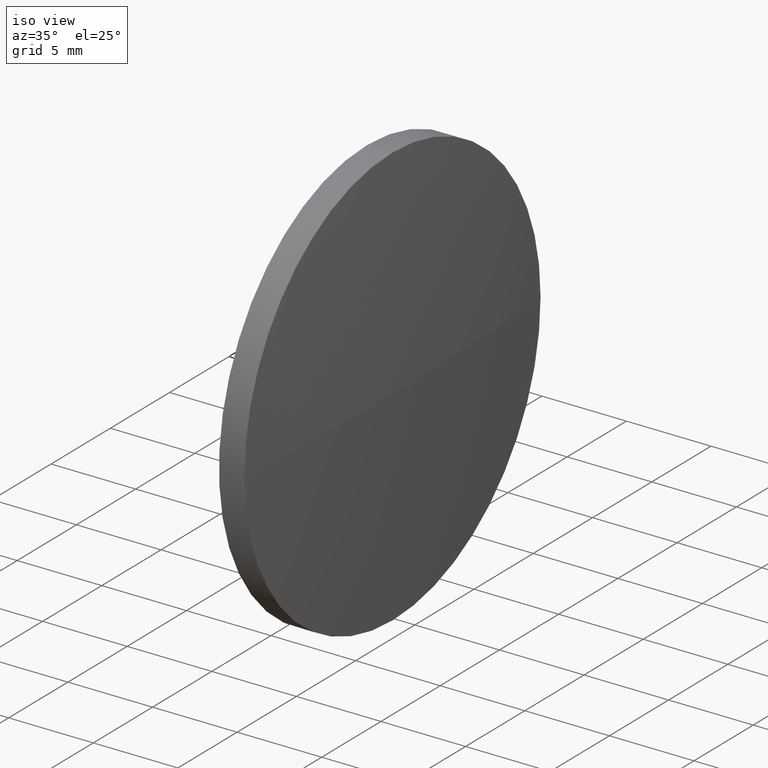
[diagram: clean part render]
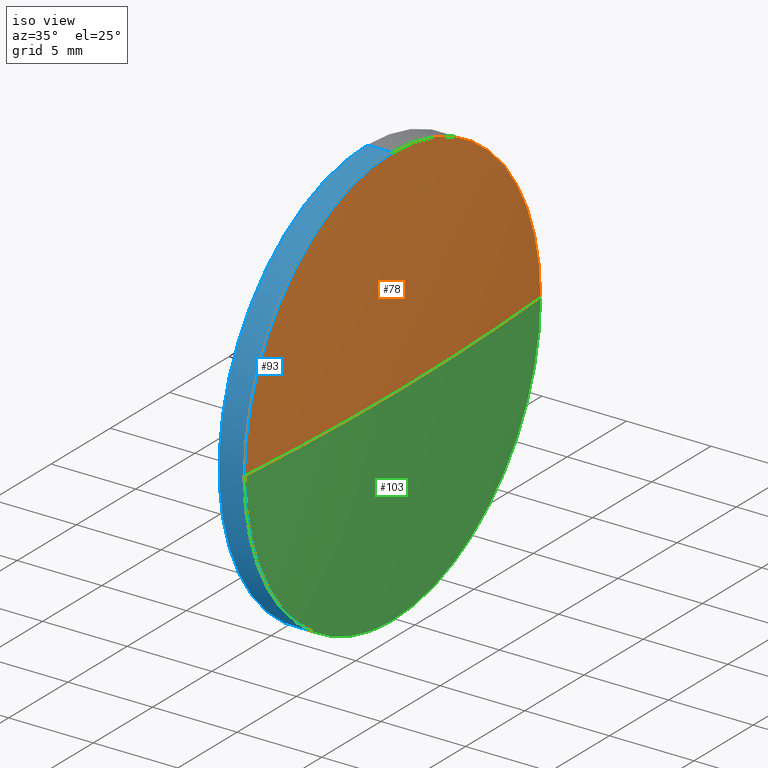
[diagram: same view with three faces highlighted in distinct colors, each labeled with its STEP entity id]
A machine part, iso view with three faces highlighted in distinct colors.
Their STEP definitions:

[orange] entity #78 — the highlighted spherical surface has radius 156.5 mm.
#6 = AXIS2_PLACEMENT_3D ( 'NONE', #16, #65, #53 ) ;
#10 = CARTESIAN_POINT ( 'NONE',  ( 494.4792713746937200, 143.8584804558214500, 12.50000000000001100 ) ) ;
#15 = EDGE_CURVE ( 'NONE', #47, #51, #87, .T. ) ;
#16 = CARTESIAN_POINT ( 'NONE',  ( 338.4792713746936700, 143.8584804558213600, 0.0000000000000000000 ) ) ;
#29 = EDGE_LOOP ( 'NONE', ( #71, #148, #120, #52 ) ) ;
#31 = CARTESIAN_POINT ( 'NONE',  ( 494.4792713746937200, 143.8584804558214500, 0.0000000000000000000 ) ) ;
#42 = DIRECTION ( 'NONE',  ( -1.000000000000000000, -0.0000000000000000000, -0.0000000000000000000 ) ) ;
#43 = DIRECTION ( 'NONE',  ( 0.0000000000000000000, 0.0000000000000000000, 1.000000000000000000 ) ) ;
#44 = VERTEX_POINT ( 'NONE', #50 ) ;
#45 = CIRCLE ( 'NONE', #94, 156.5000000000000300 ) ;
#47 = VERTEX_POINT ( 'NONE', #165 ) ;
#50 = CARTESIAN_POINT ( 'NONE',  ( 494.9792713746937200, 143.8584804558213600, 0.0000000000000000000 ) ) ;
#51 = VERTEX_POINT ( 'NONE', #10 ) ;
#52 = ORIENTED_EDGE ( 'NONE', *, *, #15, .F. ) ;
#53 = DIRECTION ( 'NONE',  ( 0.0000000000000000000, 1.000000000000000000, 0.0000000000000000000 ) ) ;
#55 = DIRECTION ( 'NONE',  ( -0.0000000000000000000, 0.0000000000000000000, 1.000000000000000000 ) ) ;
#59 = DIRECTION ( 'NONE',  ( -1.000000000000000000, -0.0000000000000000000, -0.0000000000000000000 ) ) ;
#65 = DIRECTION ( 'NONE',  ( -0.0000000000000000000, 0.0000000000000000000, -1.000000000000000000 ) ) ;
#66 = CARTESIAN_POINT ( 'NONE',  ( 494.4792713746937200, 156.3584804558213900, 0.0000000000000000000 ) ) ;
#67 = FACE_OUTER_BOUND ( 'NONE', #29, .T. ) ;
#71 = ORIENTED_EDGE ( 'NONE', *, *, #98, .F. ) ;
#78 = ADVANCED_FACE ( 'NONE', ( #67 ), #108, .T. ) ;
#79 = VERTEX_POINT ( 'NONE', #66 ) ;
#87 = CIRCLE ( 'NONE', #169, 12.50000000000001100 ) ;
#94 = AXIS2_PLACEMENT_3D ( 'NONE', #124, #55, #185 ) ;
#98 = EDGE_CURVE ( 'NONE', #44, #47, #144, .T. ) ;
#108 = SPHERICAL_SURFACE ( 'NONE', #6, 156.5000000000000300 ) ;
#116 = CARTESIAN_POINT ( 'NONE',  ( 494.4792713746937200, 143.8584804558214500, 0.0000000000000000000 ) ) ;
#118 = AXIS2_PLACEMENT_3D ( 'NONE', #159, #171, #170 ) ;
#120 = ORIENTED_EDGE ( 'NONE', *, *, #146, .F. ) ;
#124 = CARTESIAN_POINT ( 'NONE',  ( 338.4792713746936700, 143.8584804558213600, 0.0000000000000000000 ) ) ;
#126 = CIRCLE ( 'NONE', #129, 12.50000000000001100 ) ;
#129 = AXIS2_PLACEMENT_3D ( 'NONE', #31, #42, #43 ) ;
#132 = DIRECTION ( 'NONE',  ( 0.0000000000000000000, 0.0000000000000000000, 1.000000000000000000 ) ) ;
#139 = EDGE_CURVE ( 'NONE', #44, #79, #45, .T. ) ;
#144 = CIRCLE ( 'NONE', #118, 156.5000000000000000 ) ;
#146 = EDGE_CURVE ( 'NONE', #51, #79, #126, .T. ) ;
#148 = ORIENTED_EDGE ( 'NONE', *, *, #139, .T. ) ;
#159 = CARTESIAN_POINT ( 'NONE',  ( 338.4792713746936700, 143.8584804558213600, 0.0000000000000000000 ) ) ;
#165 = CARTESIAN_POINT ( 'NONE',  ( 494.4792713746937200, 131.3584804558213900, -1.530808498934188200E-015 ) ) ;
#169 = AXIS2_PLACEMENT_3D ( 'NONE', #116, #59, #132 ) ;
#170 = DIRECTION ( 'NONE',  ( 0.0000000000000000000, 1.000000000000000000, 1.224646799147353500E-016 ) ) ;
#171 = DIRECTION ( 'NONE',  ( 0.0000000000000000000, 1.224646799147353200E-016, -1.000000000000000000 ) ) ;
#185 = DIRECTION ( 'NONE',  ( 1.000000000000000000, 0.0000000000000000000, 0.0000000000000000000 ) ) ;

[blue] entity #93 — the highlighted cylindrical surface (partial cylindrical patch) has radius 12.5 mm, axis along (-1, -0, -0).
#4 = CYLINDRICAL_SURFACE ( 'NONE', #181, 12.50000000000001100 ) ;
#10 = CARTESIAN_POINT ( 'NONE',  ( 494.4792713746937200, 143.8584804558214500, 12.50000000000001100 ) ) ;
#11 = EDGE_CURVE ( 'NONE', #119, #47, #168, .T. ) ;
#12 = EDGE_LOOP ( 'NONE', ( #135, #25, #153, #83, #75 ) ) ;
#13 = CARTESIAN_POINT ( 'NONE',  ( 490.6136554719327600, 143.8584804558214500, -12.50000000000001100 ) ) ;
#15 = EDGE_CURVE ( 'NONE', #47, #51, #87, .T. ) ;
#17 = DIRECTION ( 'NONE',  ( 0.0000000000000000000, 0.0000000000000000000, 1.000000000000000000 ) ) ;
#18 = CARTESIAN_POINT ( 'NONE',  ( 494.4792713746937200, 143.8584804558214500, -12.50000000000001100 ) ) ;
#22 = AXIS2_PLACEMENT_3D ( 'NONE', #184, #81, #17 ) ;
#25 = ORIENTED_EDGE ( 'NONE', *, *, #11, .T. ) ;
#28 = CIRCLE ( 'NONE', #22, 12.50000000000001100 ) ;
#35 = LINE ( 'NONE', #110, #150 ) ;
#36 = FACE_OUTER_BOUND ( 'NONE', #12, .T. ) ;
#47 = VERTEX_POINT ( 'NONE', #165 ) ;
#51 = VERTEX_POINT ( 'NONE', #10 ) ;
#59 = DIRECTION ( 'NONE',  ( -1.000000000000000000, -0.0000000000000000000, -0.0000000000000000000 ) ) ;
#62 = CARTESIAN_POINT ( 'NONE',  ( 494.4792713746937200, 143.8584804558214500, 0.0000000000000000000 ) ) ;
#70 = VECTOR ( 'NONE', #172, 1000.000000000000000 ) ;
#75 = ORIENTED_EDGE ( 'NONE', *, *, #92, .F. ) ;
#81 = DIRECTION ( 'NONE',  ( -1.000000000000000000, -0.0000000000000000000, -0.0000000000000000000 ) ) ;
#83 = ORIENTED_EDGE ( 'NONE', *, *, #163, .T. ) ;
#87 = CIRCLE ( 'NONE', #169, 12.50000000000001100 ) ;
#92 = EDGE_CURVE ( 'NONE', #176, #149, #28, .T. ) ;
#93 = ADVANCED_FACE ( 'NONE', ( #36 ), #4, .T. ) ;
#106 = CARTESIAN_POINT ( 'NONE',  ( 492.9792713746937200, 143.8584804558214500, -12.50000000000001100 ) ) ;
#109 = CARTESIAN_POINT ( 'NONE',  ( 490.6136554719327600, 143.8584804558214500, 0.0000000000000000000 ) ) ;
#110 = CARTESIAN_POINT ( 'NONE',  ( 490.6136554719327600, 143.8584804558214500, 12.50000000000001100 ) ) ;
#111 = AXIS2_PLACEMENT_3D ( 'NONE', #62, #167, #180 ) ;
#114 = LINE ( 'NONE', #13, #70 ) ;
#116 = CARTESIAN_POINT ( 'NONE',  ( 494.4792713746937200, 143.8584804558214500, 0.0000000000000000000 ) ) ;
#119 = VERTEX_POINT ( 'NONE', #18 ) ;
#122 = DIRECTION ( 'NONE',  ( -1.000000000000000000, -0.0000000000000000000, -0.0000000000000000000 ) ) ;
#123 = EDGE_CURVE ( 'NONE', #119, #176, #114, .T. ) ;
#125 = DIRECTION ( 'NONE',  ( 0.0000000000000000000, 0.0000000000000000000, 1.000000000000000000 ) ) ;
#132 = DIRECTION ( 'NONE',  ( 0.0000000000000000000, 0.0000000000000000000, 1.000000000000000000 ) ) ;
#135 = ORIENTED_EDGE ( 'NONE', *, *, #123, .F. ) ;
#140 = DIRECTION ( 'NONE',  ( -1.000000000000000000, -0.0000000000000000000, -0.0000000000000000000 ) ) ;
#143 = CARTESIAN_POINT ( 'NONE',  ( 492.9792713746937200, 143.8584804558214500, 12.50000000000001100 ) ) ;
#149 = VERTEX_POINT ( 'NONE', #143 ) ;
#150 = VECTOR ( 'NONE', #140, 1000.000000000000000 ) ;
#153 = ORIENTED_EDGE ( 'NONE', *, *, #15, .T. ) ;
#163 = EDGE_CURVE ( 'NONE', #51, #149, #35, .T. ) ;
#165 = CARTESIAN_POINT ( 'NONE',  ( 494.4792713746937200, 131.3584804558213900, -1.530808498934188200E-015 ) ) ;
#167 = DIRECTION ( 'NONE',  ( -1.000000000000000000, -0.0000000000000000000, -0.0000000000000000000 ) ) ;
#168 = CIRCLE ( 'NONE', #111, 12.50000000000001100 ) ;
#169 = AXIS2_PLACEMENT_3D ( 'NONE', #116, #59, #132 ) ;
#172 = DIRECTION ( 'NONE',  ( -1.000000000000000000, -0.0000000000000000000, -0.0000000000000000000 ) ) ;
#176 = VERTEX_POINT ( 'NONE', #106 ) ;
#180 = DIRECTION ( 'NONE',  ( 0.0000000000000000000, 0.0000000000000000000, 1.000000000000000000 ) ) ;
#181 = AXIS2_PLACEMENT_3D ( 'NONE', #109, #122, #125 ) ;
#184 = CARTESIAN_POINT ( 'NONE',  ( 492.9792713746937200, 143.8584804558214500, 0.0000000000000000000 ) ) ;

[green] entity #103 — the highlighted spherical surface has radius 156.5 mm.
#3 = EDGE_CURVE ( 'NONE', #79, #119, #166, .T. ) ;
#11 = EDGE_CURVE ( 'NONE', #119, #47, #168, .T. ) ;
#18 = CARTESIAN_POINT ( 'NONE',  ( 494.4792713746937200, 143.8584804558214500, -12.50000000000001100 ) ) ;
#32 = DIRECTION ( 'NONE',  ( -0.0000000000000000000, 0.0000000000000000000, -1.000000000000000000 ) ) ;
#44 = VERTEX_POINT ( 'NONE', #50 ) ;
#45 = CIRCLE ( 'NONE', #94, 156.5000000000000300 ) ;
#47 = VERTEX_POINT ( 'NONE', #165 ) ;
#50 = CARTESIAN_POINT ( 'NONE',  ( 494.9792713746937200, 143.8584804558213600, 0.0000000000000000000 ) ) ;
#55 = DIRECTION ( 'NONE',  ( -0.0000000000000000000, 0.0000000000000000000, 1.000000000000000000 ) ) ;
#57 = ORIENTED_EDGE ( 'NONE', *, *, #139, .F. ) ;
#60 = FACE_OUTER_BOUND ( 'NONE', #182, .T. ) ;
#62 = CARTESIAN_POINT ( 'NONE',  ( 494.4792713746937200, 143.8584804558214500, 0.0000000000000000000 ) ) ;
#64 = DIRECTION ( 'NONE',  ( 0.0000000000000000000, 0.0000000000000000000, 1.000000000000000000 ) ) ;
#66 = CARTESIAN_POINT ( 'NONE',  ( 494.4792713746937200, 156.3584804558213900, 0.0000000000000000000 ) ) ;
#79 = VERTEX_POINT ( 'NONE', #66 ) ;
#91 = AXIS2_PLACEMENT_3D ( 'NONE', #145, #32, #95 ) ;
#94 = AXIS2_PLACEMENT_3D ( 'NONE', #124, #55, #185 ) ;
#95 = DIRECTION ( 'NONE',  ( 0.0000000000000000000, 1.000000000000000000, 0.0000000000000000000 ) ) ;
#98 = EDGE_CURVE ( 'NONE', #44, #47, #144, .T. ) ;
#99 = AXIS2_PLACEMENT_3D ( 'NONE', #133, #154, #64 ) ;
#102 = ORIENTED_EDGE ( 'NONE', *, *, #98, .T. ) ;
#103 = ADVANCED_FACE ( 'NONE', ( #60 ), #156, .T. ) ;
#111 = AXIS2_PLACEMENT_3D ( 'NONE', #62, #167, #180 ) ;
#118 = AXIS2_PLACEMENT_3D ( 'NONE', #159, #171, #170 ) ;
#119 = VERTEX_POINT ( 'NONE', #18 ) ;
#124 = CARTESIAN_POINT ( 'NONE',  ( 338.4792713746936700, 143.8584804558213600, 0.0000000000000000000 ) ) ;
#131 = ORIENTED_EDGE ( 'NONE', *, *, #11, .F. ) ;
#133 = CARTESIAN_POINT ( 'NONE',  ( 494.4792713746937200, 143.8584804558214500, 0.0000000000000000000 ) ) ;
#139 = EDGE_CURVE ( 'NONE', #44, #79, #45, .T. ) ;
#144 = CIRCLE ( 'NONE', #118, 156.5000000000000000 ) ;
#145 = CARTESIAN_POINT ( 'NONE',  ( 338.4792713746936700, 143.8584804558213600, 0.0000000000000000000 ) ) ;
#154 = DIRECTION ( 'NONE',  ( -1.000000000000000000, -0.0000000000000000000, -0.0000000000000000000 ) ) ;
#156 = SPHERICAL_SURFACE ( 'NONE', #91, 156.5000000000000300 ) ;
#159 = CARTESIAN_POINT ( 'NONE',  ( 338.4792713746936700, 143.8584804558213600, 0.0000000000000000000 ) ) ;
#165 = CARTESIAN_POINT ( 'NONE',  ( 494.4792713746937200, 131.3584804558213900, -1.530808498934188200E-015 ) ) ;
#166 = CIRCLE ( 'NONE', #99, 12.50000000000001100 ) ;
#167 = DIRECTION ( 'NONE',  ( -1.000000000000000000, -0.0000000000000000000, -0.0000000000000000000 ) ) ;
#168 = CIRCLE ( 'NONE', #111, 12.50000000000001100 ) ;
#170 = DIRECTION ( 'NONE',  ( 0.0000000000000000000, 1.000000000000000000, 1.224646799147353500E-016 ) ) ;
#171 = DIRECTION ( 'NONE',  ( 0.0000000000000000000, 1.224646799147353200E-016, -1.000000000000000000 ) ) ;
#178 = ORIENTED_EDGE ( 'NONE', *, *, #3, .F. ) ;
#180 = DIRECTION ( 'NONE',  ( 0.0000000000000000000, 0.0000000000000000000, 1.000000000000000000 ) ) ;
#182 = EDGE_LOOP ( 'NONE', ( #57, #102, #131, #178 ) ) ;
#185 = DIRECTION ( 'NONE',  ( 1.000000000000000000, 0.0000000000000000000, 0.0000000000000000000 ) ) ;